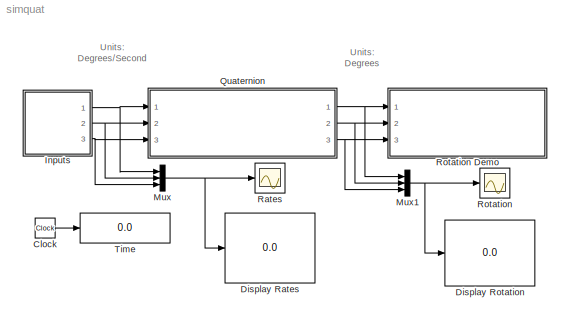
MODEL simquat
KIND model
CONFIG PostLoadFcn = quatdemo Static Foo Bar
BLOCK [Clock] Clock
  Decimation = 10
BLOCK [Display] Display Rates
  Decimation = 1
  Ports = [1]
BLOCK [Display] Display Rotation
  Decimation = 1
  Ports = [1]
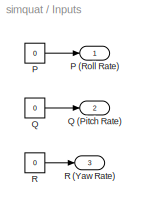
BLOCK [SubSystem] Inputs
  MinAlgLoopOccurrences = off
  OpenFcn = quatdemo Dynamic Foo Bar
  Ports = [0, 3]
  PropExecContextAcrossSSBoundary = on
  RTWSystemCode = Auto
  TreatAsAtomicUnit = off
BLOCK [Constant] Inputs/P
  Value = 0
BLOCK [Outport] Inputs/P (Roll Rate)
  IconDisplay = Port number
  InitialOutput = 0
BLOCK [Constant] Inputs/Q
  Value = 0
BLOCK [Outport] Inputs/Q (Pitch Rate)
  IconDisplay = Port number
  InitialOutput = 0
  Port = 2
BLOCK [Constant] Inputs/R
  Value = 0
BLOCK [Outport] Inputs/R (Yaw Rate)
  IconDisplay = Port number
  InitialOutput = 0
  Port = 3
BLOCK [Mux] Mux
  Inputs = 3
  Ports = [3, 1]
BLOCK [Mux] Mux1
  Inputs = 3
  Ports = [3, 1]
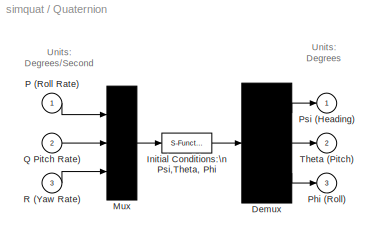
BLOCK [SubSystem] Quaternion
  MaskCallbackString = ||
  MaskDescription = Calculate Psi, Theta and Phi based on P,Q,R
  MaskDisplay = disp('Quaternion\\nCalculation')
  MaskEnableString = on,on,on
  MaskHelp = This block calculates the Yaw (Psi), Pitch (Theta) and Roll (Phi) of an aircraft using quaternion rotation calculations.  The inputs to the block are P (Roll rate), Q(Pitch rate) and R(Yaw rate).  All input units are Degrees per second.  The outputs of the block are Psi, Theta and Phi all given in Degrees.
  MaskIconFrame = on
  MaskIconOpaque = off
  MaskIconRotate = none
  MaskIconUnits = autoscale
  MaskPromptString = Initial Psi Value (Deg.)|Initial Theta Value (Deg.):|Initial Phi Value (Deg.):
  MaskStyleString = edit,edit,edit
  MaskTabNameString = ,,
  MaskToolTipString = on,on,on
  MaskTunableValueString = on,on,on
  MaskType = Quaternion Calculation
  MaskValueString = 0|0|0
  MaskVarAliasString = ,,
  MaskVariables = Psi=@1;Theta=@2;Phi=@3;
  MaskVisibilityString = on,on,on
  MinAlgLoopOccurrences = off
  OpenFcn = quatdemo Static Foo Bar
  Ports = [3, 3]
  PropExecContextAcrossSSBoundary = on
  RTWSystemCode = Auto
  TreatAsAtomicUnit = off
BLOCK [Demux] Quaternion/Demux
  Outputs = 3
  Ports = [1, 3]
BLOCK [S-Function] Quaternion/Initial Conditions:\nPsi,Theta, Phi
  FunctionName = eulrot
  Parameters = Psi,Theta,Phi
  Ports = [1, 1]
BLOCK [Mux] Quaternion/Mux
  Inputs = 3
  Ports = [3, 1]
BLOCK [Inport] Quaternion/P (Roll Rate)
  IconDisplay = Port number
  LatchInput = off
  Port = 1
BLOCK [Outport] Quaternion/Phi (Roll)
  IconDisplay = Port number
  InitialOutput = 0
  Port = 3
BLOCK [Outport] Quaternion/Psi (Heading)
  IconDisplay = Port number
  InitialOutput = 0
BLOCK [Inport] Quaternion/Q Pitch Rate)
  IconDisplay = Port number
  LatchInput = off
  Port = 2
BLOCK [Inport] Quaternion/R (Yaw Rate)
  IconDisplay = Port number
  LatchInput = off
  Port = 3
BLOCK [Outport] Quaternion/Theta (Pitch)
  IconDisplay = Port number
  InitialOutput = 0
  Port = 2
BLOCK [Scope] Rates
  DataFormat = Array
  NumInputPorts = 1
  Ports = [1]
  TickLabels = on
BLOCK [Scope] Rotation
  DataFormat = Array
  NumInputPorts = 1
  Ports = [1]
  TickLabels = on
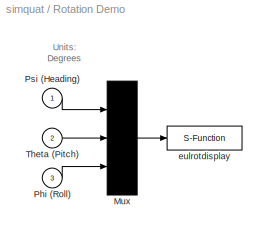
BLOCK [SubSystem] Rotation Demo
  MaskDisplay = disp('Euler\\nRotation')
  MaskIconFrame = on
  MaskIconOpaque = off
  MaskIconRotate = none
  MaskIconUnits = normalized
  MaskType = Euler Rotation
  MinAlgLoopOccurrences = off
  OpenFcn = quatdemo Static Foo Bar
  Ports = [3]
  PropExecContextAcrossSSBoundary = on
  RTWSystemCode = Auto
  TreatAsAtomicUnit = off
BLOCK [Mux] Rotation Demo/Mux
  Inputs = 3
  Ports = [3, 1]
BLOCK [Inport] Rotation Demo/Phi (Roll)
  IconDisplay = Port number
  LatchInput = off
  Port = 3
BLOCK [Inport] Rotation Demo/Psi (Heading)
  IconDisplay = Port number
  LatchInput = off
  Port = 1
BLOCK [Inport] Rotation Demo/Theta (Pitch)
  IconDisplay = Port number
  LatchInput = off
  Port = 2
BLOCK [S-Function] Rotation Demo/eulrotdisplay
  FunctionName = eulrotdisplay
  Ports = [1]
BLOCK [Display] Time
  Decimation = 1
  Ports = [1]
ANNOTATION (root): Units:\nDegrees
ANNOTATION (root): Units:\nDegrees/Second
ANNOTATION Quaternion: Units:\nDegrees
ANNOTATION Quaternion: Units:\nDegrees/Second
ANNOTATION Rotation Demo: Units:\nDegrees
LINE Clock:1 -> Time:1
LINE Inputs/P:1 -> Inputs/P (Roll Rate):1
LINE Inputs/Q:1 -> Inputs/Q (Pitch Rate):1
LINE Inputs/R:1 -> Inputs/R (Yaw Rate):1
NET Inputs:1 -> Mux:1, Quaternion:1
NET Inputs:2 -> Mux:2, Quaternion:2
NET Inputs:3 -> Mux:3, Quaternion:3
NET Mux1:1 -> Display Rotation:1, Rotation:1
NET Mux:1 -> Display Rates:1, Rates:1
LINE Quaternion/Demux:1 -> Quaternion/Psi (Heading):1
LINE Quaternion/Demux:2 -> Quaternion/Theta (Pitch):1
LINE Quaternion/Demux:3 -> Quaternion/Phi (Roll):1
LINE Quaternion/Initial Conditions:\nPsi,Theta, Phi:1 -> Quaternion/Demux:1
LINE Quaternion/Mux:1 -> Quaternion/Initial Conditions:\nPsi,Theta, Phi:1
LINE Quaternion/P (Roll Rate):1 -> Quaternion/Mux:1
LINE Quaternion/Q Pitch Rate):1 -> Quaternion/Mux:2
LINE Quaternion/R (Yaw Rate):1 -> Quaternion/Mux:3
NET Quaternion:1 -> Mux1:1, Rotation Demo:1
NET Quaternion:2 -> Mux1:2, Rotation Demo:2
NET Quaternion:3 -> Mux1:3, Rotation Demo:3
LINE Rotation Demo/Mux:1 -> Rotation Demo/eulrotdisplay:1
LINE Rotation Demo/Phi (Roll):1 -> Rotation Demo/Mux:3
LINE Rotation Demo/Psi (Heading):1 -> Rotation Demo/Mux:1
LINE Rotation Demo/Theta (Pitch):1 -> Rotation Demo/Mux:2
note: NET lines group one-source signal fan-out (src -> all destinations, sorted); 1:1 wires keep LINE
